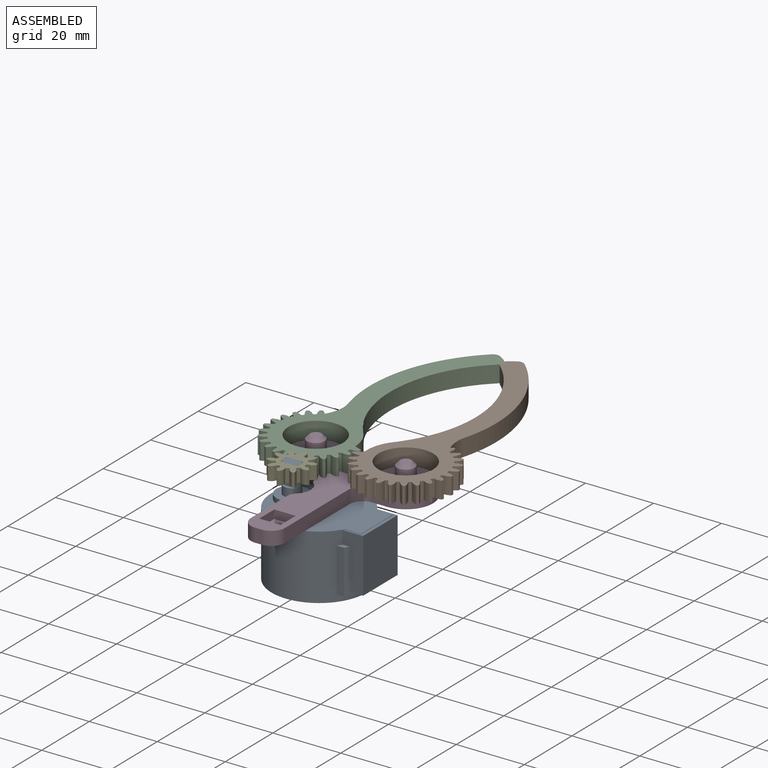
[diagram: assembled view]
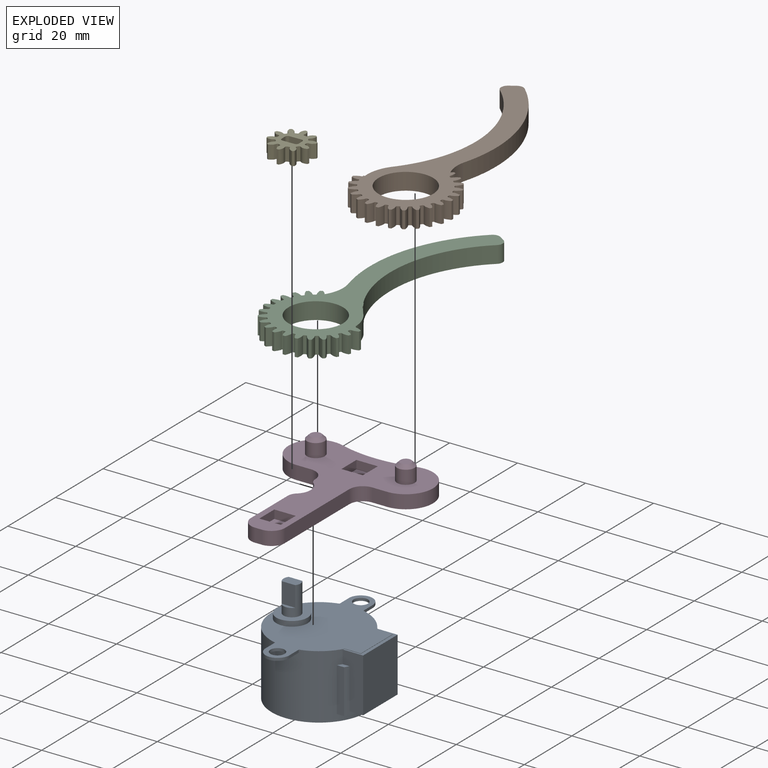
[diagram: exploded view]
GUIDED TOUR — FREECAD ASSEMBLY "Canapince"

This assembly has 5 components, labeled P0..P4 below (a component is one placed body or linked part; the same part can appear more than once), held together by 4 modeled joints. A joint is a constraint between two components; its type names the relative motion it leaves free:
  REVOLUTE — leaves rotation about the listed axis free (a hinge).
Axis/direction vectors are unit vectors and 'through' points are millimeter coordinates, both in the assembly's world frame.

MATES
  1. REVOLUTE [Revolute] "Joint001": P3 <-> P0, axis (0.000, 0.000, 1.000) through (0.00, -78.01, 0.00) mm
  2. REVOLUTE [Revolute] "Joint004": P0 <-> P4, axis (0.000, 0.000, 1.000) through (-8.00, -60.51, 10.00) mm
  3. REVOLUTE [Revolute] "Joint": P2 <-> P3, axis (0.000, 0.000, 1.000) through (-13.25, -43.01, 4.00) mm
  4. REVOLUTE [Revolute] "Joint005": P1 <-> P3, axis (0.000, 0.000, -1.000) through (13.25, -43.01, 4.00) mm

ASSEMBLY ORDER
  1. P3 — the base component [order heuristic]
  2. P2 — core [order heuristic]
  3. P1 [order verified]
  4. P4 — core [order heuristic]
  5. P0 — core [order heuristic]
Order-tag legend:
  [order verified] — this step's position reverses a verified removal order: the component was checked to insert without passing through the ones already placed.
  [order heuristic] — the first 4 components form the assembly's core: parts whose collision-free extraction could not be verified, listed in mate-graph order.

Of the 5 components, 2 carry a construction recipe — the FreeCAD feature program (sketches with constraints, then the solid features that consume them) that regenerates the part from scratch, quoted from this document or from the linked companion document it references; the rest are supplied as boundary geometry only. The tour below walks the components in assembly order: each is shown spotlighted twice — in the assembled view, then in the exploded view, where a leader line traces a displaced component back to its assembled socket (components that stay in place when exploded have no leader line; saturated green if recipe-attached, orange if geometry-only; every other component desaturated gray) — followed by its recipe or geometry summary and the mates that hold it.
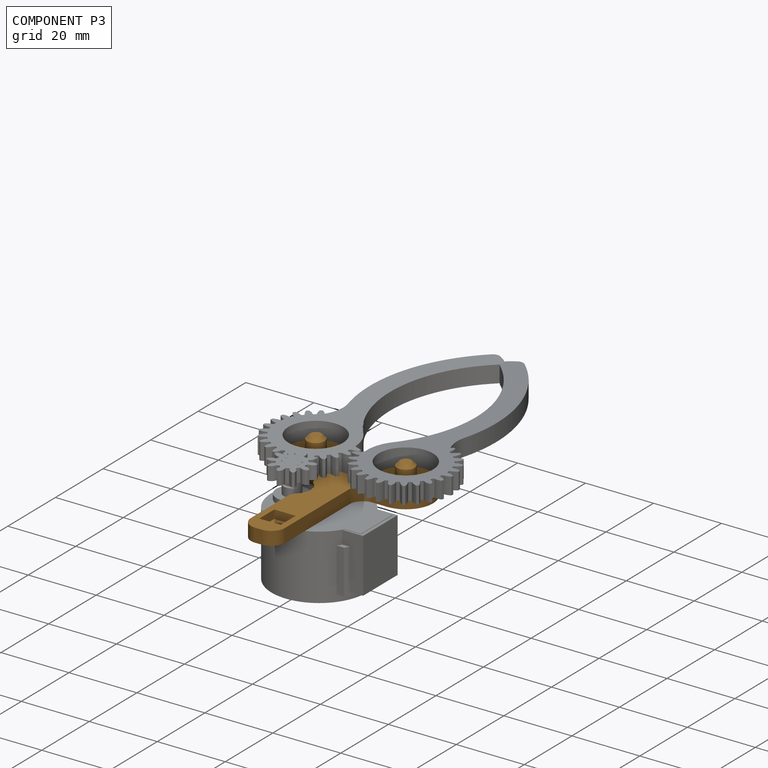
[diagram: component P3 — assembled]
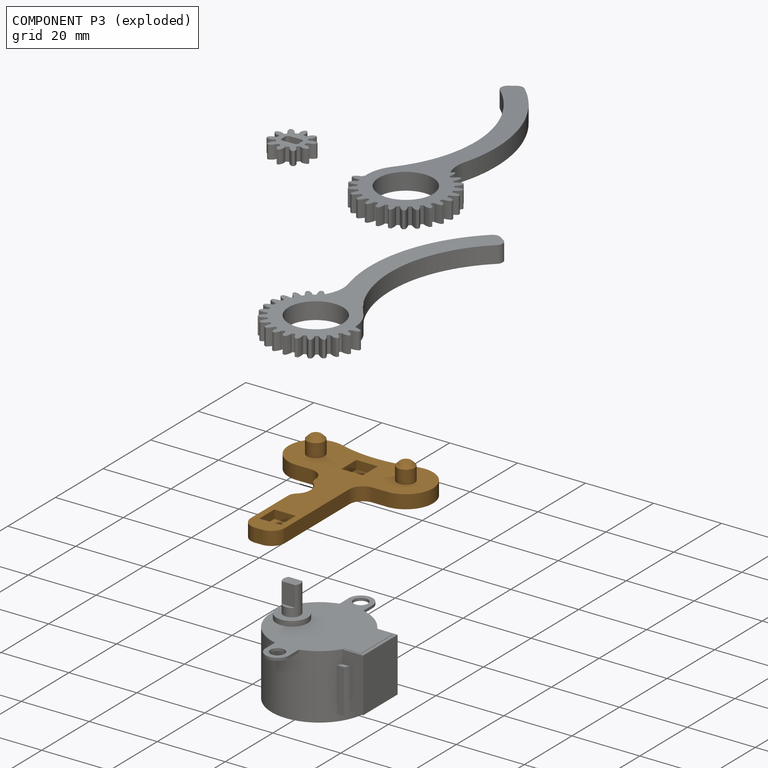
[diagram: component P3 — exploded]
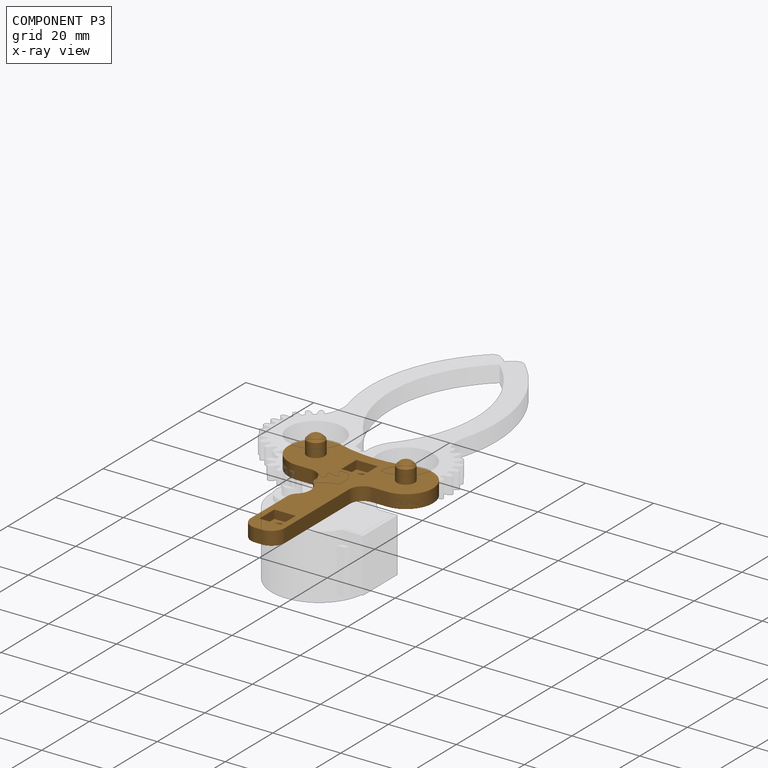
[diagram: component P3 — x-ray view]
COMPONENT P3 — geometry summary ("partie_fixe"; no construction recipe available for this part):
  bounding box: 51.0 x 42.5 x 9.0 mm
  tessellated surface: 4,736 triangles
  volume: 3661 mm^3 (19% of its bounding box)
Held by: REVOLUTE mate "Joint001" to P0; REVOLUTE mate "Joint" to P2; REVOLUTE mate "Joint005" to P1.
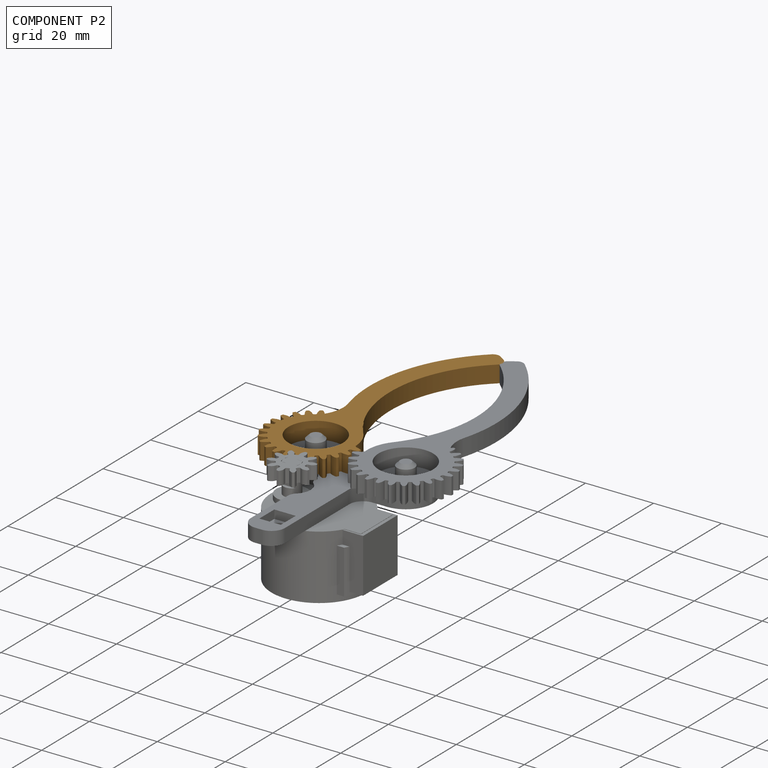
[diagram: component P2 — assembled]
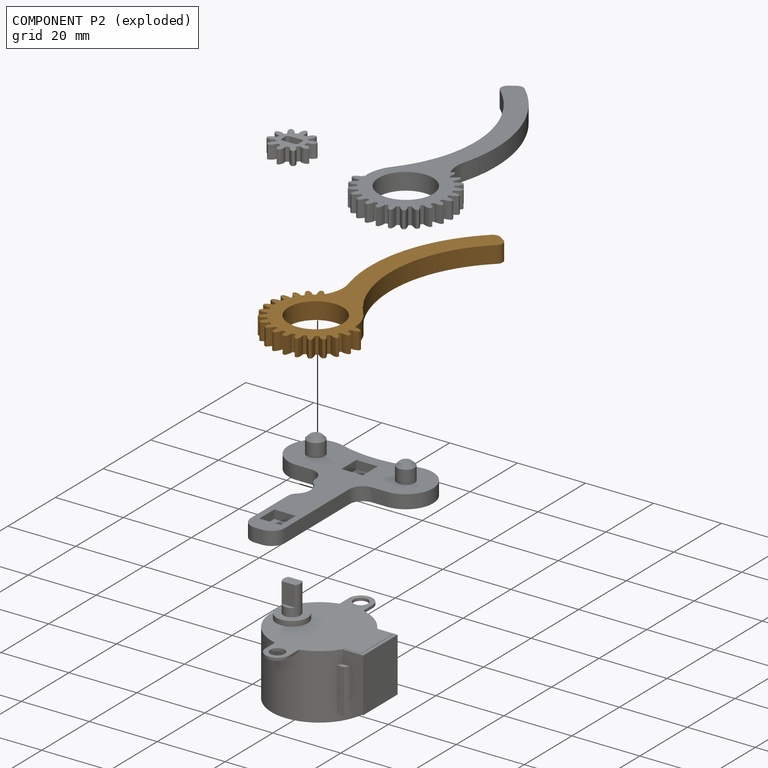
[diagram: component P2 — exploded]
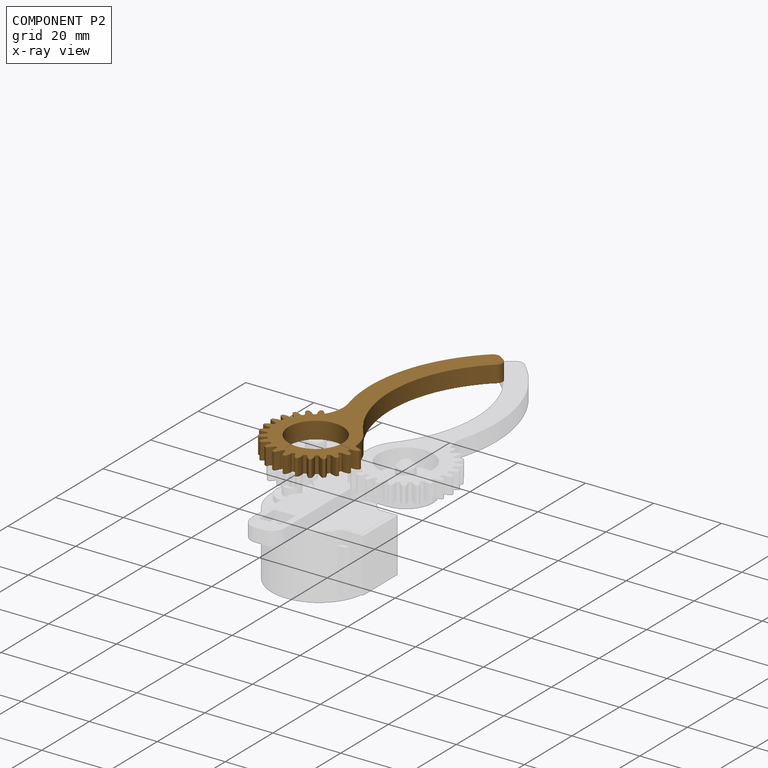
[diagram: component P2 — x-ray view]
COMPONENT P2 — geometry summary ("bras_R"; no construction recipe available for this part):
  bounding box: 76.5 x 27.9 x 5.0 mm
  tessellated surface: 7,976 triangles
  volume: 3166 mm^3 (30% of its bounding box)
  symmetry: mirror-symmetric across its z mid-plane
Held by: REVOLUTE mate "Joint" to P3.
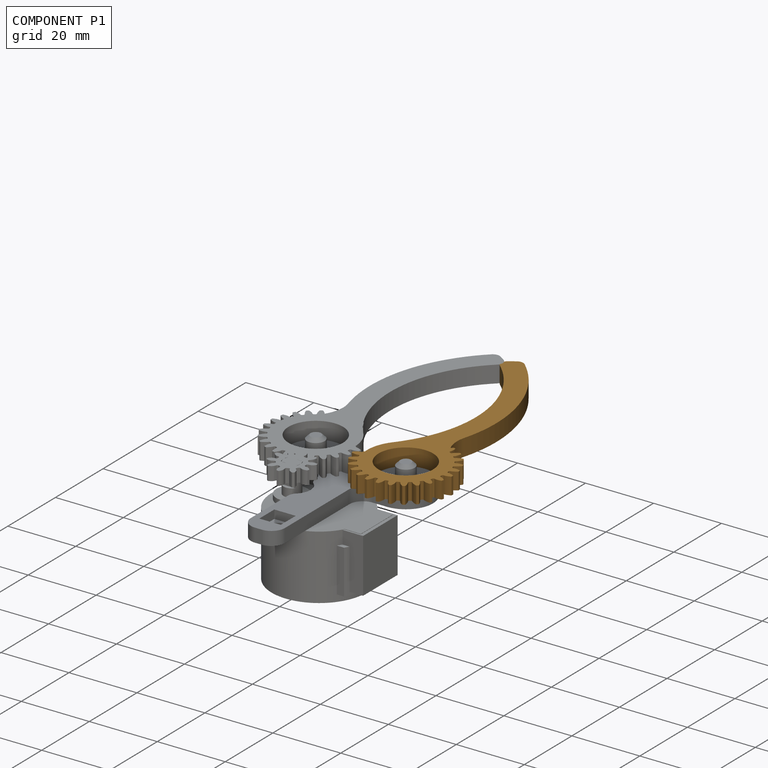
[diagram: component P1 — assembled]
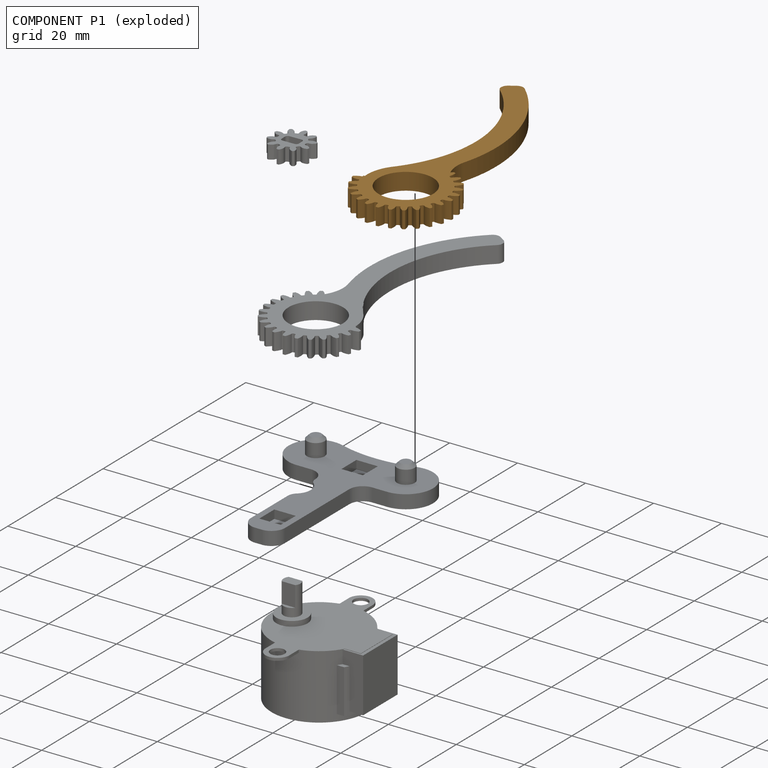
[diagram: component P1 — exploded]
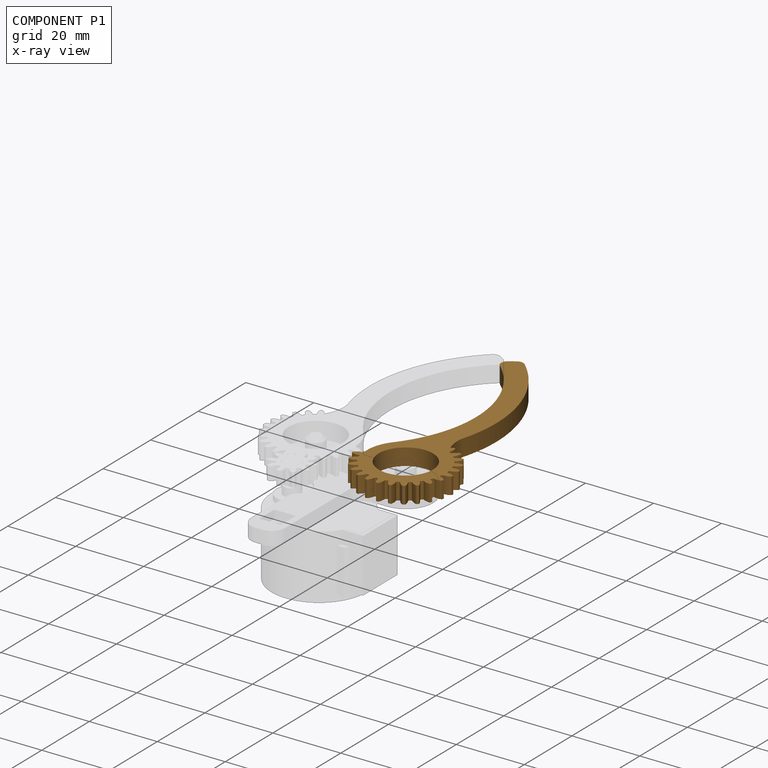
[diagram: component P1 — x-ray view]
COMPONENT P1 — geometry summary ("bras_L"; no construction recipe available for this part):
  bounding box: 76.4 x 27.8 x 5.0 mm
  tessellated surface: 7,804 triangles
  volume: 3151 mm^3 (30% of its bounding box)
  symmetry: mirror-symmetric across its z mid-plane
Held by: REVOLUTE mate "Joint005" to P3.
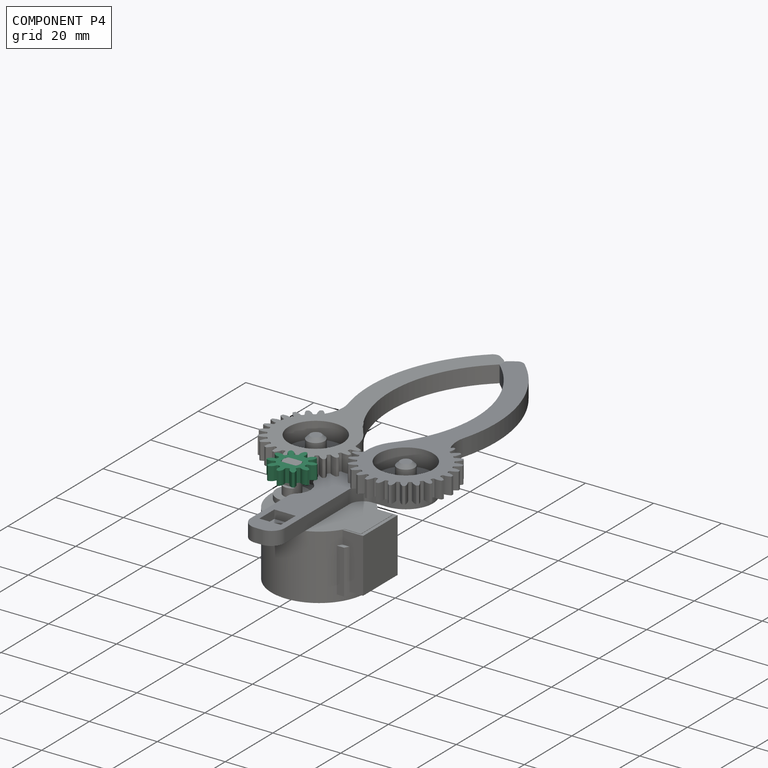
[diagram: component P4 — assembled]
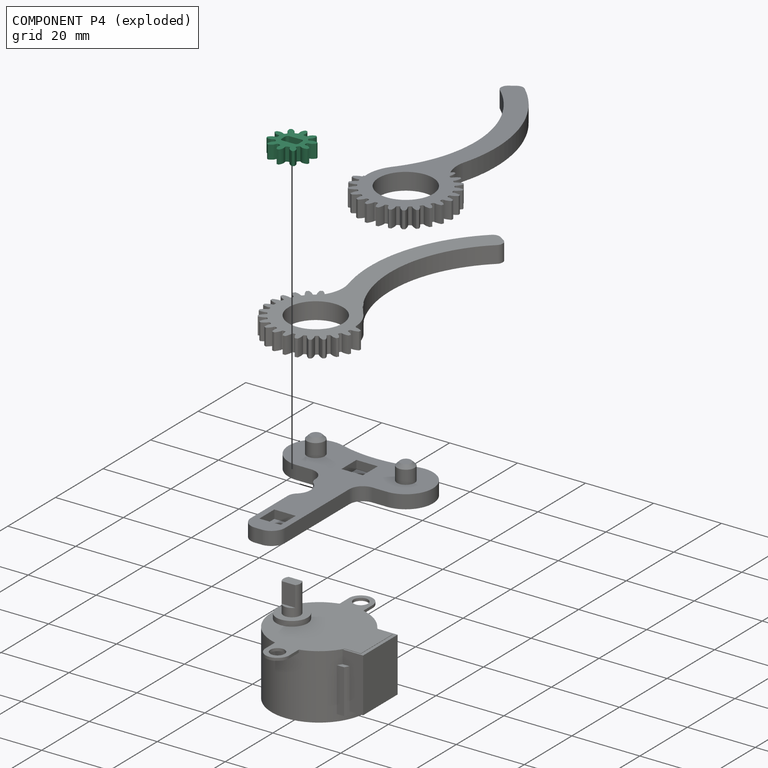
[diagram: component P4 — exploded]
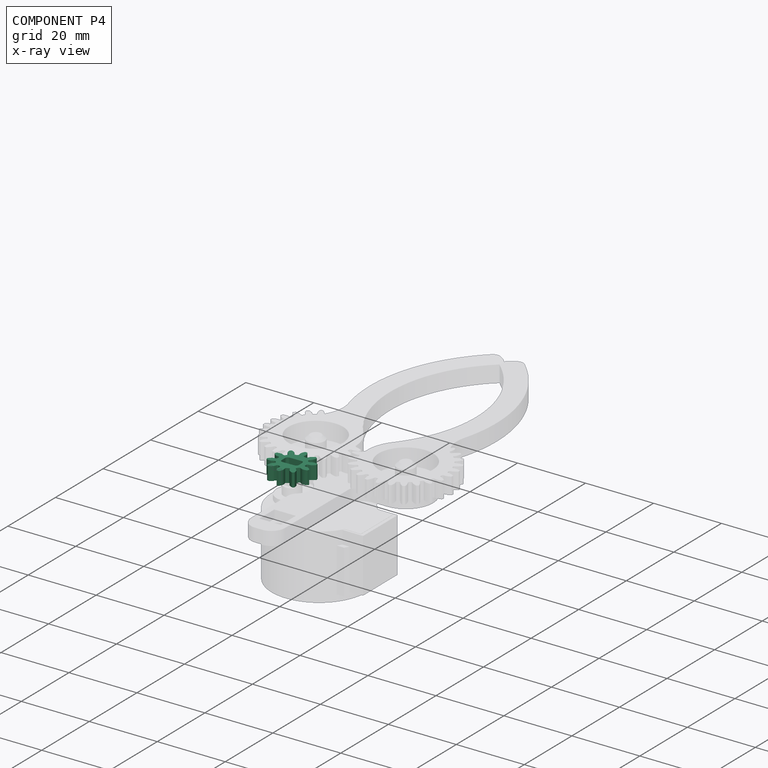
[diagram: component P4 — x-ray view]
COMPONENT P4 — recipe-attached ("pignon", a linked part whose construction recipe lives in a companion FreeCAD document of the same project; that document's serialized recipe follows).
Held by: REVOLUTE mate "Joint004" to P0.
Construction recipe (the companion document, serialized — sketch geometry with constraints, then the solid features built on it; lengths are millimeters unless a unit is written):

FCSTD DOCUMENT  (FreeCAD 1.0R39109 (Git))
Label: pignon
License: All rights reserved
LicenseURL: https://en.wikipedia.org/wiki/All_rights_reserved
objects: Sketcher::SketchObject×2, Part::Part2DObjectPython×1, PartDesign::Pad×1, PartDesign::Pocket×1, PartDesign::Fillet×1, Mesh::Feature×1, PartDesign::CoordinateSystem×1, PartDesign::Body×1
note: 16 computed .brp shape members not serialized (recipe doc carries the construction recipe); baked Part::Feature solids carry a one-line shape summary decoded from their .brp

FEATURE [Sketcher::SketchObject] Sketch
  ArcFitTolerance = 0
  AttachmentSupport = -> [XY_Plane]
  FullyConstrained = true
  MakeInternals = false
  MapMode = 5
  sketch-geometry (1):
    g0: Circle CenterX=0 CenterY=0 CenterZ=0 NormalX=0 NormalY=0 NormalZ=1 AngleXU=0 Radius=6.5
  constraints (2):
    c: Coincident(g0,g-1)
    c: Diameter(g0) = 13
FEATURE [Part::Part2DObjectPython] InvoluteGear  # Draft 2D object (typed FeaturePython)
  AddendumCoefficient = 1
  DedendumCoefficient = 1.25
  ExternalGear = true
  HighPrecision = true
  Modules = 1.05
  NumberOfTeeth = 10
  PressureAngle = 20
  ProfileShiftCoefficient = 0
  RootFilletCoefficient = 0.38
FEATURE [PartDesign::Pad] Pad
  Direction = (0,0,1)
  Length = 4
  Length2 = 10
  Profile = -> InvoluteGear
  ReferenceAxis = -> InvoluteGear [N_Axis]
  Suppressed = false
  Type = 0
FEATURE [Sketcher::SketchObject] Sketch001
  ArcFitTolerance = 0
  AttachmentSupport = -> [Pad]
  FullyConstrained = true
  MakeInternals = false
  MapMode = 5
  Placement = pos=(0,0,4) rot=(0,0,1;0rad)
  sketch-geometry (5):
    g0: LineSegment StartX=-1.5 StartY=-2.5 StartZ=0 EndX=-1.5 EndY=2.5 EndZ=0
    g1: LineSegment StartX=-1.5 StartY=2.5 StartZ=0 EndX=1.5 EndY=2.5 EndZ=0
    g2: LineSegment StartX=1.5 StartY=2.5 StartZ=0 EndX=1.5 EndY=-2.5 EndZ=0
    g3: LineSegment StartX=1.5 StartY=-2.5 StartZ=0 EndX=-1.5 EndY=-2.5 EndZ=0
    g4: GeomPoint [constr] X=0 Y=0 Z=0
  constraints (12):
    c: Coincident(g0,g1)
    c: Coincident(g1,g2)
    c: Coincident(g2,g3)
    c: Coincident(g3,g0)
    c: Horizontal(g1)
    c: Horizontal(g3)
    c: Vertical(g0)
    c: Vertical(g2)
    c: Symmetric(g1,g0,g4)
    c: Coincident(g4,g-1)
    c: Distance(g2) = 5
    c: Distance(g1) = 3
FEATURE [PartDesign::Pocket] Pocket
  BaseFeature = -> Pad
  Direction = (0,0,-1)
  Length = 5
  Length2 = 5
  Profile = -> Sketch001
  ReferenceAxis = -> Sketch001 [N_Axis]
  Suppressed = false
  Type = 1
FEATURE [PartDesign::Fillet] Fillet
  Base = -> Pocket [Edge310,Edge311,Edge312,Edge309]
  BaseFeature = -> Pocket
  Radius = 0.8
  SupportTransform = false
  Suppressed = false
  UseAllEdges = false
FEATURE [Mesh::Feature] Mesh  label="Corps (Meshed)"
FEATURE [PartDesign::CoordinateSystem] LCS_1
  AttacherType = Attacher::AttachEngine3D
  AttachmentSupport = -> [Fillet]
  MapMode = 5
  Placement = pos=(0,0,4) rot=(0,0,1;0rad)
FEATURE [PartDesign::Body] Body  label="pignon"
  AllowCompound = false
  Group = -> [Sketch,InvoluteGear,Pad,Sketch001,Pocket,Fillet,LCS_1]
  Origin = -> Origin
  Tip = -> Fillet
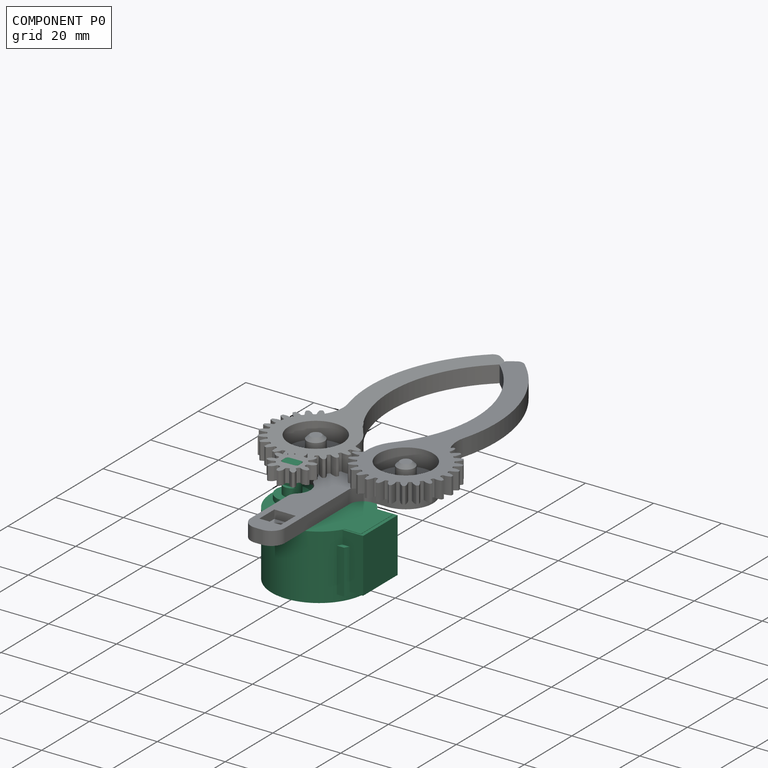
[diagram: component P0 — assembled]
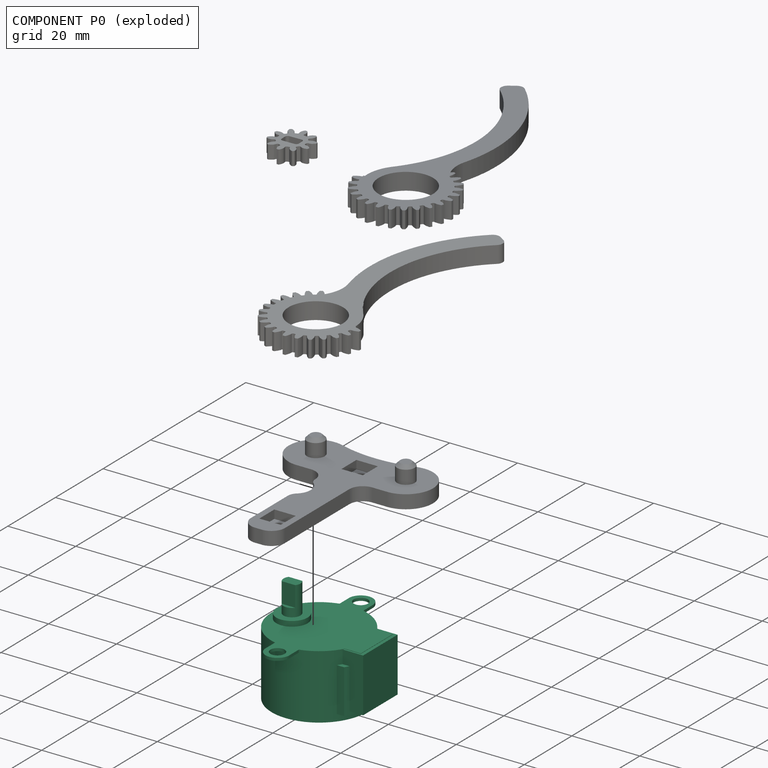
[diagram: component P0 — exploded]
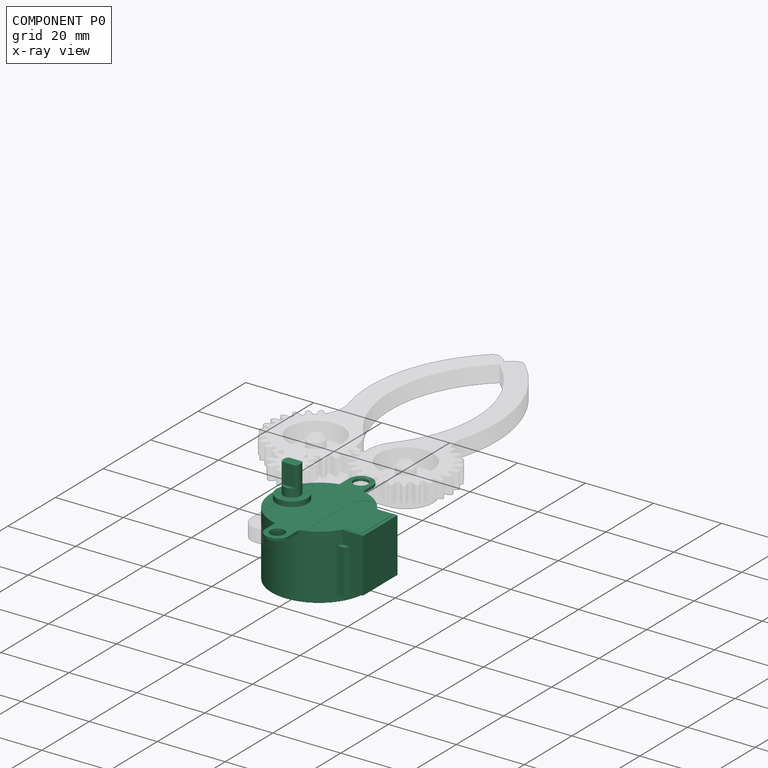
[diagram: component P0 — x-ray view]
COMPONENT P0 — recipe-attached ("28BYJ_48", a linked part whose construction recipe lives in a companion FreeCAD document of the same project; that document's serialized recipe follows).
Held by: REVOLUTE mate "Joint001" to P3; REVOLUTE mate "Joint004" to P4.
Construction recipe (the companion document, serialized — sketch geometry with constraints, then the solid features built on it; lengths are millimeters unless a unit is written):

FCSTD DOCUMENT  (FreeCAD 1.0R39109 (Git))
Label: 28BYJ-48-stepper
License: All rights reserved
LicenseURL: http://en.wikipedia.org/wiki/All_rights_reserved
objects: Sketcher::SketchObject×9, PartDesign::Pad×8, PartDesign::CoordinateSystem×4, PartDesign::Mirrored×2, PartDesign::Plane×1, PartDesign::Pocket×1, PartDesign::Body×1, App::Part×1
note: 55 computed .brp shape members not serialized (recipe doc carries the construction recipe); baked Part::Feature solids carry a one-line shape summary decoded from their .brp

FEATURE [Sketcher::SketchObject] Sketch
  ArcFitTolerance = 0
  AttachmentSupport = -> [XZ_Plane001]
  FullyConstrained = true
  MakeInternals = false
  MapMode = 5
  Placement = pos=(0,0,0) rot=(1,0,0;1.5708rad)
  sketch-geometry (1):
    g0: Circle CenterX=0 CenterY=0 CenterZ=0 NormalX=0 NormalY=0 NormalZ=1 AngleXU=0 Radius=14
  constraints (2):
    c: Coincident(g0,g-1)
    c: Diameter(g0) = 28
FEATURE [PartDesign::Pad] Pad
  Direction = (0,-1,2e-16)
  Length = 19
  Length2 = 100
  Placement = pos=(0,0,0) rot=(1,0,0;1.5708rad)
  Profile = -> Sketch
  ReferenceAxis = -> Sketch [N_Axis]
  Reversed = true
  Suppressed = false
  Type = 0
FEATURE [Sketcher::SketchObject] Sketch001
  ArcFitTolerance = 0
  AttachmentSupport = -> [Pad]
  ExternalGeometry = -> [Pad]
  FullyConstrained = true
  MakeInternals = false
  MapMode = 5
  Placement = pos=(0,0,0) rot=(1,0,0;1.5708rad)
  sketch-geometry (4):
    g0: LineSegment StartX=-7.25 StartY=-11.9765 StartZ=0 EndX=7.25 EndY=-11.9765 EndZ=0
    g1: LineSegment StartX=7.25 StartY=-11.9765 StartZ=0 EndX=7.25 EndY=-18 EndZ=0
    g2: LineSegment StartX=7.25 StartY=-18 StartZ=0 EndX=-7.25 EndY=-18 EndZ=0
    g3: LineSegment StartX=-7.25 StartY=-18 StartZ=0 EndX=-7.25 EndY=-11.9765 EndZ=0
  constraints (11):
    c: Coincident(g0,g1)
    c: Coincident(g1,g2)
    c: Coincident(g2,g3)
    c: Coincident(g3,g0)
    c: Horizontal(g0)
    c: Vertical(g1)
    c: Vertical(g3)
    c: PointOnObject(g0,g-3)
    c: Symmetric(g2,g1,g-2)
    c: DistanceX(g2,g2) = 14.5
    c: DistanceY(g1,g-1) = 18
FEATURE [PartDesign::Pad] Pad001
  BaseFeature = -> Pad
  Direction = (0,-1,2e-16)
  Length = 16
  Length2 = 100
  Placement = pos=(0,0,0) rot=(1,0,0;1.5708rad)
  Profile = -> Sketch001
  ReferenceAxis = -> Sketch001 [N_Axis]
  Refine = true
  Reversed = true
  Suppressed = false
  Type = 0
FEATURE [Sketcher::SketchObject] Sketch002
  ArcFitTolerance = 0
  AttachmentSupport = -> [Pad001]
  ExternalGeometry = -> [Pad001]
  FullyConstrained = true
  MakeInternals = false
  MapMode = 5
  Placement = pos=(0,0,0) rot=(1,0,0;1.5708rad)
  sketch-geometry (5):
    g0: Circle CenterX=-17.5 CenterY=-1e-16 CenterZ=0 NormalX=0 NormalY=0 NormalZ=1 AngleXU=0 Radius=2.1
    g1: ArcOfCircle CenterX=-17.5 CenterY=-1e-16 CenterZ=0 NormalX=0 NormalY=0 NormalZ=1 AngleXU=0 Radius=3.5 StartAngle=1.5708 EndAngle=4.71239
    g2: LineSegment StartX=-17.5 StartY=3.5 StartZ=0 EndX=-13.5554 EndY=3.5 EndZ=0
    g3: LineSegment StartX=-13.5554 StartY=3.5 StartZ=0 EndX=-13.5554 EndY=-3.5 EndZ=0
    g4: LineSegment StartX=-13.5554 StartY=-3.5 StartZ=0 EndX=-17.5 EndY=-3.5 EndZ=0
  constraints (14):
    c: Coincident(g1,g0)
    c: Symmetric(g1,g1,g-1)
    c: Vertical(g1,g0)
    c: Coincident(g2,g1)
    c: Horizontal(g2)
    c: Coincident(g3,g2)
    c: Vertical(g3)
    c: Coincident(g4,g3)
    c: Coincident(g4,g1)
    c: Horizontal(g4)
    c: PointOnObject(g2,g-3)
    c: Diameter(g0) = 4.2
    c: Radius(g1) = 3.5
    c: DistanceX(g0,g-1) = 17.5
FEATURE [PartDesign::Pad] Pad002
  BaseFeature = -> Pad001
  Direction = (0,-1,2e-16)
  Length = 0.8
  Length2 = 100
  Placement = pos=(0,0,0) rot=(1,0,0;1.5708rad)
  Profile = -> Sketch002
  ReferenceAxis = -> Sketch002 [N_Axis]
  Refine = true
  Reversed = true
  Suppressed = false
  Type = 0
FEATURE [PartDesign::Mirrored] Mirrored
  BaseFeature = -> Pad002
  MirrorPlane = -> Sketch002 [V_Axis]
  Originals = -> [Pad002]
  Placement = pos=(0,0,0) rot=(1,0,0;1.5708rad)
  Refine = true
  Suppressed = false
  TransformMode = 0
FEATURE [Sketcher::SketchObject] Sketch003
  ArcFitTolerance = 0
  AttachmentSupport = -> [Mirrored]
  FullyConstrained = true
  MakeInternals = false
  MapMode = 5
  Placement = pos=(0,0,0) rot=(1,0,0;1.5708rad)
  sketch-geometry (1):
    g0: Circle CenterX=0 CenterY=8 CenterZ=0 NormalX=0 NormalY=0 NormalZ=1 AngleXU=0 Radius=4.6
  constraints (3):
    c: PointOnObject(g0,g-2)
    c: Diameter(g0) = 9.2
    c: DistanceY(g-1,g0) = 8
FEATURE [PartDesign::Pad] Pad003
  BaseFeature = -> Mirrored
  Direction = (0,-1,2e-16)
  Length = 1.5
  Length2 = 100
  Placement = pos=(0,0,0) rot=(1,0,0;1.5708rad)
  Profile = -> Sketch003
  ReferenceAxis = -> Sketch003 [N_Axis]
  Suppressed = false
  Type = 0
FEATURE [Sketcher::SketchObject] Sketch004
  ArcFitTolerance = 0
  AttachmentSupport = -> [Pad003]
  ExternalGeometry = -> [Pad003]
  FullyConstrained = true
  MakeInternals = false
  MapMode = 5
  Placement = pos=(0,-1.5,0) rot=(1,0,0;1.5708rad)
  sketch-geometry (1):
    g0: Circle CenterX=0 CenterY=8 CenterZ=0 NormalX=0 NormalY=0 NormalZ=1 AngleXU=0 Radius=2.5
  constraints (2):
    c: Coincident(g0,g-3)
    c: Diameter(g0) = 5
FEATURE [PartDesign::Pad] Pad004
  BaseFeature = -> Pad003
  Direction = (0,-1,2e-16)
  Length = 2.5
  Length2 = 100
  Placement = pos=(0,0,0) rot=(1,0,0;1.5708rad)
  Profile = -> Sketch004
  ReferenceAxis = -> Sketch004 [N_Axis]
  Suppressed = false
  Type = 0
FEATURE [Sketcher::SketchObject] Sketch005
  ArcFitTolerance = 0
  AttachmentSupport = -> [Pad004]
  ExternalGeometry = -> [Pad004]
  FullyConstrained = true
  MakeInternals = false
  MapMode = 5
  Placement = pos=(0,-4,0) rot=(1,0,0;1.5708rad)
  sketch-geometry (4):
    g0: LineSegment StartX=-1.5 StartY=10 StartZ=0 EndX=-1.5 EndY=6 EndZ=0
    g1: LineSegment StartX=1.5 StartY=10 StartZ=0 EndX=1.5 EndY=6 EndZ=0
    g2: ArcOfCircle CenterX=0 CenterY=8 CenterZ=0 NormalX=0 NormalY=0 NormalZ=1 AngleXU=0 Radius=2.5 StartAngle=0.927295 EndAngle=2.2143
    g3: ArcOfCircle CenterX=0 CenterY=8 CenterZ=0 NormalX=0 NormalY=0 NormalZ=1 AngleXU=0 Radius=2.5 StartAngle=4.06889 EndAngle=5.35589
  constraints (12):
    c: PointOnObject(g0,g-3)
    c: PointOnObject(g0,g-3)
    c: Vertical(g0)
    c: Vertical(g1)
    c: Coincident(g2,g-3)
    c: Coincident(g2,g0)
    c: Coincident(g2,g1)
    c: Coincident(g3,g2)
    c: Coincident(g3,g0)
    c: Coincident(g3,g1)
    c: DistanceX(g0,g1) = 3
    c: Horizontal(g0,g1)
FEATURE [PartDesign::Pad] Pad005
  BaseFeature = -> Pad004
  Direction = (0,-1,2e-16)
  Length = 6
  Length2 = 100
  Placement = pos=(0,0,0) rot=(1,0,0;1.5708rad)
  Profile = -> Sketch005
  ReferenceAxis = -> Sketch005 [N_Axis]
  Refine = true
  Suppressed = false
  Type = 0
FEATURE [PartDesign::Plane] DatumPlane
  AttachmentOffset = pos=(0,0,-4) rot=(0,0,1;0rad)
  AttachmentSupport = -> [Pad005]
  Length = 60
  MapMode = 2
  Placement = pos=(0,4,-9e-16) rot=(1,0,0;1.5708rad)
  ResizeMode = 0
  Width = 60
FEATURE [Sketcher::SketchObject] Sketch006
  ArcFitTolerance = 0
  AttachmentSupport = -> [DatumPlane]
  ExternalGeometry = -> [Pad005]
  FullyConstrained = true
  MakeInternals = false
  MapMode = 5
  Placement = pos=(0,4,-9e-16) rot=(1,0,0;1.5708rad)
  sketch-geometry (4):
    g0: ArcOfCircle CenterX=0 CenterY=0 CenterZ=0 NormalX=0 NormalY=0 NormalZ=1 AngleXU=0 Radius=15.7659 StartAngle=4.14297 EndAngle=4.23456
    g1: LineSegment StartX=-7.25 StartY=-14 StartZ=0 EndX=-7.25 EndY=-11.9765 EndZ=0
    g2: LineSegment StartX=-8.5 StartY=-13.2783 StartZ=0 EndX=-8.5 EndY=-11.1243 EndZ=0
    g3: ArcOfCircle CenterX=0 CenterY=0 CenterZ=0 NormalX=0 NormalY=0 NormalZ=1 AngleXU=0 Radius=14 StartAngle=4.05993 EndAngle=4.16804
  constraints (11):
    c: Coincident(g0,g-1)
    c: Coincident(g1,g-4)
    c: Coincident(g2,g0)
    c: Vertical(g2)
    c: Coincident(g3,g0)
    c: Coincident(g3,g1)
    c: Coincident(g3,g2)
    c: Coincident(g1,g0)
    c: DistanceX(g2,g0) = 8.5
    c: Vertical(g1)
    c: DistanceY(g-3,g0) = 4
FEATURE [PartDesign::Pad] Pad006
  BaseFeature = -> Pad005
  Direction = (0,-1,2e-16)
  Length = 10
  Length2 = 100
  Placement = pos=(0,0,0) rot=(1,0,0;1.5708rad)
  Profile = -> Sketch006
  ReferenceAxis = -> Sketch006 [N_Axis]
  Refine = true
  Suppressed = false
  Type = 3
  UpToFace = -> Pad005 [Face11]
FEATURE [PartDesign::Mirrored] Mirrored001
  BaseFeature = -> Pad006
  MirrorPlane = -> Sketch006 [V_Axis]
  Originals = -> [Pad006]
  Placement = pos=(0,0,0) rot=(1,0,0;1.5708rad)
  Refine = true
  Suppressed = false
  TransformMode = 0
FEATURE [Sketcher::SketchObject] Sketch007
  ArcFitTolerance = 0
  AttachmentSupport = -> [Mirrored001]
  ExternalGeometry = -> [Mirrored001]
  FullyConstrained = true
  MakeInternals = false
  MapMode = 5
  Placement = pos=(0,16,0) rot=(-1,0,0;1.5708rad)
  sketch-geometry (4):
    g0: ArcOfCircle CenterX=0 CenterY=0 CenterZ=0 NormalX=0 NormalY=0 NormalZ=1 AngleXU=0 Radius=14 StartAngle=0.918336 EndAngle=2.22326
    g1: ArcOfCircle CenterX=0 CenterY=0 CenterZ=0 NormalX=0 NormalY=0 NormalZ=1 AngleXU=0 Radius=15.7659 StartAngle=1.00138 EndAngle=2.14021
    g2: LineSegment StartX=-8.5 StartY=13.2783 StartZ=0 EndX=-8.5 EndY=11.1243 EndZ=0
    g3: LineSegment StartX=8.5 StartY=13.2783 StartZ=0 EndX=8.5 EndY=11.1243 EndZ=0
  constraints (10):
    c: Coincident(g0,g-1)
    c: Coincident(g0,g-3)
    c: Coincident(g1,g0)
    c: Coincident(g1,g-4)
    c: Coincident(g2,g1)
    c: Coincident(g2,g0)
    c: Coincident(g3,g1)
    c: Coincident(g3,g0)
    c: Vertical(g3)
    c: Horizontal(g1,g1)
FEATURE [PartDesign::Pad] Pad007
  BaseFeature = -> Mirrored001
  Direction = (0,1,2e-16)
  Length = 1
  Length2 = 100
  Placement = pos=(0,0,0) rot=(1,0,0;1.5708rad)
  Profile = -> Sketch007
  ReferenceAxis = -> Sketch007 [N_Axis]
  Refine = true
  Suppressed = false
  Type = 0
FEATURE [Sketcher::SketchObject] Sketch008
  ArcFitTolerance = 0
  AttachmentSupport = -> [Pad007]
  ExternalGeometry = -> [Pad007]
  FullyConstrained = false
  MakeInternals = false
  MapMode = 5
  Placement = pos=(0,0,0) rot=(1,0,0;1.5708rad)
  sketch-geometry (8):
    g0: LineSegment StartX=-7.25 StartY=-11.9765 StartZ=0 EndX=-7.25 EndY=-18 EndZ=0
    g1: LineSegment StartX=7.25 StartY=-18 StartZ=0 EndX=-7.25 EndY=-18 EndZ=0
    g2: LineSegment StartX=7.25 StartY=-18 StartZ=0 EndX=7.25 EndY=-11.9765 EndZ=0
    g3: ArcOfCircle CenterX=0 CenterY=0 CenterZ=0 NormalX=0 NormalY=0 NormalZ=1 AngleXU=0 Radius=14 StartAngle=4.16804 EndAngle=4.20929
    g4: LineSegment StartX=-6.75 StartY=-12.2653 StartZ=0 EndX=-6.75 EndY=-17 EndZ=0
    g5: LineSegment StartX=-6.75 StartY=-17 StartZ=0 EndX=6.75 EndY=-17 EndZ=0
    g6: LineSegment StartX=6.75 StartY=-17 StartZ=0 EndX=6.75 EndY=-12.2653 EndZ=0
    g7: ArcOfCircle CenterX=-1.15416 CenterY=1.9985 CenterZ=0 NormalX=0 NormalY=0 NormalZ=1 AngleXU=0 Radius=16.3074 StartAngle=5.21841 EndAngle=5.25381
  constraints (19):
    c: Coincident(g0,g-3)
    c: Coincident(g0,g-5)
    c: Coincident(g1,g-6)
    c: Coincident(g1,g0)
    c: Coincident(g2,g1)
    c: Coincident(g2,g-4)
    c: Coincident(g3,g-1)
    c: Coincident(g3,g0)
    c: Coincident(g7,g2)
    c: Vertical(g4)
    c: Coincident(g5,g4)
    c: Horizontal(g5)
    c: Coincident(g6,g5)
    c: Symmetric(g4,g6,g-2)
    c: Vertical(g6)
    c: DistanceX(g0,g4) = 0.5
    c: DistanceY(g0,g4) = 1
    c: Coincident(g3,g4)
    c: Coincident(g7,g6)
FEATURE [PartDesign::Pocket] Pocket
  BaseFeature = -> Pad007
  Direction = (0,1,-2e-16)
  Length = 0.1
  Length2 = 100
  Placement = pos=(0,0,0) rot=(1,0,0;1.5708rad)
  Profile = -> Sketch008
  Suppressed = false
  Type = 0
FEATURE [PartDesign::Body] Body  label="28BYJ_48_StepperBody"
  AllowCompound = false
  Group = -> [Sketch,Pad,Sketch001,Pad001,Sketch002,Pad002,Mirrored,Sketch003,Pad003,Sketch004,Pad004,Sketch005,Pad005,DatumPlane,Sketch006,Pad006,Mirrored001,Sketch007,Pad007,Sketch008,Pocket]
  Origin = -> Origin001
  Tip = -> Pocket
FEATURE [PartDesign::CoordinateSystem] LCS_Mounting_Housing_Center
  AttacherType = Attacher::AttachEngine3D
  AttachmentSupport = -> [Pocket]
  MapMode = 11
  Placement = pos=(0,0.8,-4e-16) rot=(0.480384,0.620174,-0.620174;2.24593rad)
FEATURE [PartDesign::CoordinateSystem] LCS_Shaft_top_center
  AttacherType = Attacher::AttachEngine3D
  AttachmentOffset = pos=(0,0,8.5) rot=(0,0,1;0rad)
  AttachmentSupport = -> [Pocket]
  MapMode = 11
  Placement = pos=(0,-10,8) rot=(0.57735,-0.57735,0.57735;2.0944rad)
FEATURE [PartDesign::CoordinateSystem] LCS_Mounting_Hole1
  AttacherType = Attacher::AttachEngine3D
  AttachmentSupport = -> [Pocket]
  MapMode = 11
  Placement = pos=(-17.5,0.8,-1e-16) rot=(0.57735,-0.57735,0.57735;2.0944rad)
FEATURE [PartDesign::CoordinateSystem] LCS_Mounting_Hole2
  AttacherType = Attacher::AttachEngine3D
  AttachmentOffset = pos=(0,0,0) rot=(1,0,0;3.14159rad)
  AttachmentSupport = -> [Pocket]
  MapMode = 11
  Placement = pos=(17.5,0.8,-1e-16) rot=(-0.57735,0.57735,-0.57735;4.18879rad)
FEATURE [App::Part] Part  label="28BYJ_48"
  Group = -> [Body,LCS_Mounting_Housing_Center,LCS_Shaft_top_center,LCS_Mounting_Hole1,LCS_Mounting_Hole2]
  Origin = -> Origin
PROVENANCE & LICENSES
Assembly and component geometry: a FreeCAD (.FCStd) document from a public repository crawl; components, placements and joints were extracted with FreeCAD and each solid tessellated.
Construction recipes: the document's own serialized feature recipes (and, for linked parts, the recipes of companion documents from the same project).
License: as declared in the source repository (recorded in the dataset sidecar).
Joints: native FreeCAD joints and A2plus constraints are mapped to standard mate types.
Verification: 2 of this assembly's 5 components carry a construction recipe (2 from linked companion documents in the same project); the rest are geometry-only. Every component's tessellation passed the extraction mesh gates (mesh-volume checksum against the B-rep where available, bounding-box inflation <= 2%).
Renders: orthographic iso camera (az 35 / el 25); the floor grid conveys scale (grid pitch printed in each image; no ruler). In the exploded view each component is displaced by its stored offset vector: the offsets alone carry the explosion direction (mate normal/axis signs are not orientation cues and do not encode it), and separation distances are assigned per mate-chain, not proportionally to assembly-order depth.
